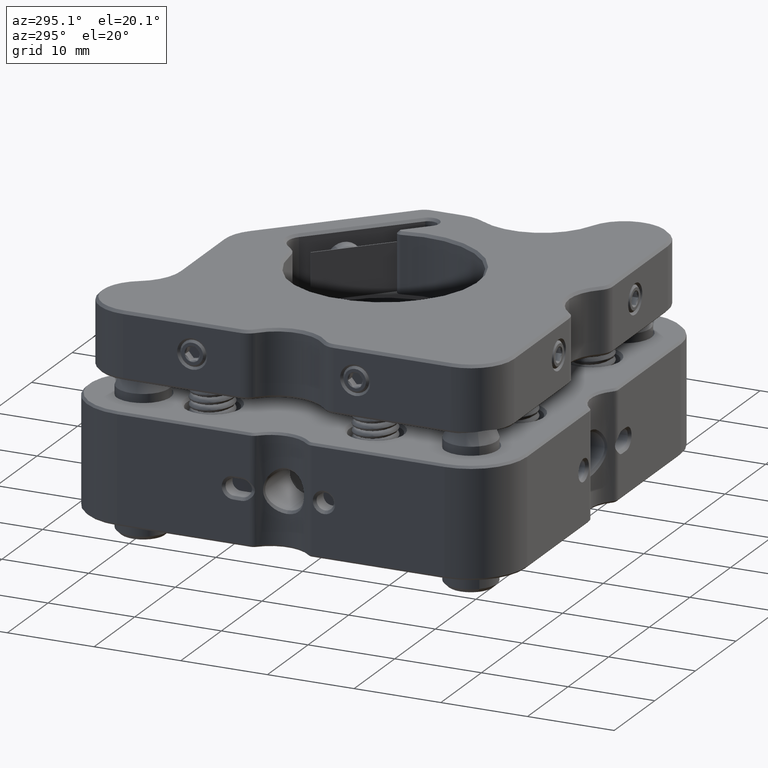
[diagram: clean part render]
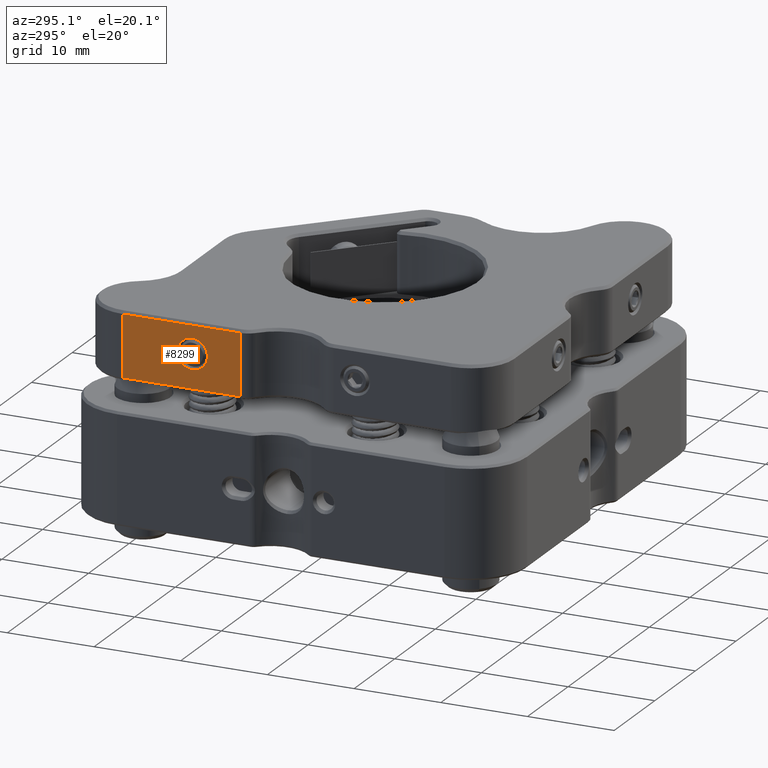
[diagram: same view with one face highlighted and labeled with its STEP entity id]
A machine part, auxiliary view. The second image highlights one B-rep face of the part: STEP entity #8299.
In plain terms, the highlighted planar face has unit normal (1, 0, 0).
Its self-contained STEP definition (entity closure, byte-faithful):
#1019 = EDGE_CURVE ( 'NONE', #4661, #3088, #11200, .T. ) ;
#1042 = VERTEX_POINT ( 'NONE', #27803 ) ;
#1896 = CARTESIAN_POINT ( 'NONE',  ( -58.70000000000003126, -23.89999999999999503, 2.100000000000000533 ) ) ;
#2043 = LINE ( 'NONE', #21895, #17165 ) ;
#2547 = CIRCLE ( 'NONE', #15409, 1.749999999999999778 ) ;
#3088 = VERTEX_POINT ( 'NONE', #11106 ) ;
#3311 = DIRECTION ( 'NONE',  ( -0.000000000000000000, 1.000000000000000000, 0.000000000000000000 ) ) ;
#4049 = EDGE_CURVE ( 'NONE', #11633, #1042, #10660, .T. ) ;
#4157 = LINE ( 'NONE', #21279, #14552 ) ;
#4274 = DIRECTION ( 'NONE',  ( 1.000000000000000000, 0.000000000000000000, 0.000000000000000000 ) ) ;
#4661 = VERTEX_POINT ( 'NONE', #18957 ) ;
#4845 = EDGE_CURVE ( 'NONE', #4661, #25881, #15357, .T. ) ;
#6690 = ORIENTED_EDGE ( 'NONE', *, *, #4845, .T. ) ;
#6721 = ORIENTED_EDGE ( 'NONE', *, *, #1019, .F. ) ;
#8284 = DIRECTION ( 'NONE',  ( 0.000000000000000000, 0.000000000000000000, 1.000000000000000000 ) ) ;
#8299 = ADVANCED_FACE ( 'NONE', ( #27444, #10176 ), #10457, .F. ) ;
#10176 = FACE_OUTER_BOUND ( 'NONE', #15385, .T. ) ;
#10457 = PLANE ( 'NONE',  #28276 ) ;
#10660 = CIRCLE ( 'NONE', #14359, 1.749999999999999778 ) ;
#10719 = CARTESIAN_POINT ( 'NONE',  ( -58.70000000000003126, -23.89999999999999503, 0.3500000000000008105 ) ) ;
#11106 = CARTESIAN_POINT ( 'NONE',  ( -66.69999999999998863, -23.89999999999999858, 3.550000000000011369 ) ) ;
#11200 = LINE ( 'NONE', #22284, #26165 ) ;
#11205 = CARTESIAN_POINT ( 'NONE',  ( -53.16190264738178684, -23.89999999999999858, 3.550000000000011369 ) ) ;
#11633 = VERTEX_POINT ( 'NONE', #1896 ) ;
#12104 = DIRECTION ( 'NONE',  ( 0.000000000000000000, 0.000000000000000000, -1.000000000000000000 ) ) ;
#12278 = EDGE_CURVE ( 'NONE', #1042, #11633, #2547, .T. ) ;
#13331 = DIRECTION ( 'NONE',  ( 0.000000000000000000, 0.000000000000000000, -1.000000000000000000 ) ) ;
#13560 = ORIENTED_EDGE ( 'NONE', *, *, #28029, .F. ) ;
#13818 = ORIENTED_EDGE ( 'NONE', *, *, #12278, .T. ) ;
#13873 = EDGE_CURVE ( 'NONE', #24831, #3088, #4157, .T. ) ;
#14359 = AXIS2_PLACEMENT_3D ( 'NONE', #10719, #21946, #13331 ) ;
#14552 = VECTOR ( 'NONE', #19131, 1000.000000000000000 ) ;
#14790 = ORIENTED_EDGE ( 'NONE', *, *, #13873, .T. ) ;
#15357 = LINE ( 'NONE', #23851, #21253 ) ;
#15385 = EDGE_LOOP ( 'NONE', ( #6721, #6690, #13560, #14790 ) ) ;
#15409 = AXIS2_PLACEMENT_3D ( 'NONE', #23021, #3311, #12104 ) ;
#17165 = VECTOR ( 'NONE', #24466, 1000.000000000000000 ) ;
#17267 = EDGE_LOOP ( 'NONE', ( #13818, #17977 ) ) ;
#17977 = ORIENTED_EDGE ( 'NONE', *, *, #4049, .T. ) ;
#18957 = CARTESIAN_POINT ( 'NONE',  ( -66.69999999999998863, -23.89999999999999858, -3.549999999999998490 ) ) ;
#19131 = DIRECTION ( 'NONE',  ( -1.000000000000000000, 0.000000000000000000, 0.000000000000000000 ) ) ;
#19833 = DIRECTION ( 'NONE',  ( -0.000000000000000000, -0.000000000000000000, 1.000000000000000000 ) ) ;
#21253 = VECTOR ( 'NONE', #4274, 1000.000000000000000 ) ;
#21279 = CARTESIAN_POINT ( 'NONE',  ( -66.69999999999997442, -23.89999999999999858, 3.550000000000011369 ) ) ;
#21895 = CARTESIAN_POINT ( 'NONE',  ( -53.16190264738178684, -23.89999999999999858, -3.850000000000000089 ) ) ;
#21946 = DIRECTION ( 'NONE',  ( -0.000000000000000000, 1.000000000000000000, 0.000000000000000000 ) ) ;
#22284 = CARTESIAN_POINT ( 'NONE',  ( -66.69999999999998863, -23.89999999999999858, 3.850000000000000089 ) ) ;
#23021 = CARTESIAN_POINT ( 'NONE',  ( -58.70000000000003126, -23.89999999999999503, 0.3500000000000008105 ) ) ;
#23851 = CARTESIAN_POINT ( 'NONE',  ( -23.89999999999999147, -23.89999999999999858, -3.549999999999998490 ) ) ;
#24466 = DIRECTION ( 'NONE',  ( 0.000000000000000000, 0.000000000000000000, -1.000000000000000000 ) ) ;
#24831 = VERTEX_POINT ( 'NONE', #11205 ) ;
#25705 = CARTESIAN_POINT ( 'NONE',  ( -23.89999999999999147, -23.89999999999999858, 3.850000000000000089 ) ) ;
#25881 = VERTEX_POINT ( 'NONE', #27848 ) ;
#26165 = VECTOR ( 'NONE', #19833, 1000.000000000000000 ) ;
#27444 = FACE_BOUND ( 'NONE', #17267, .T. ) ;
#27803 = CARTESIAN_POINT ( 'NONE',  ( -58.70000000000003126, -23.89999999999999503, -1.399999999999998801 ) ) ;
#27848 = CARTESIAN_POINT ( 'NONE',  ( -53.16190264738178684, -23.89999999999999858, -3.549999999999998490 ) ) ;
#28009 = DIRECTION ( 'NONE',  ( 0.000000000000000000, 1.000000000000000000, 0.000000000000000000 ) ) ;
#28029 = EDGE_CURVE ( 'NONE', #24831, #25881, #2043, .T. ) ;
#28276 = AXIS2_PLACEMENT_3D ( 'NONE', #25705, #28009, #8284 ) ;